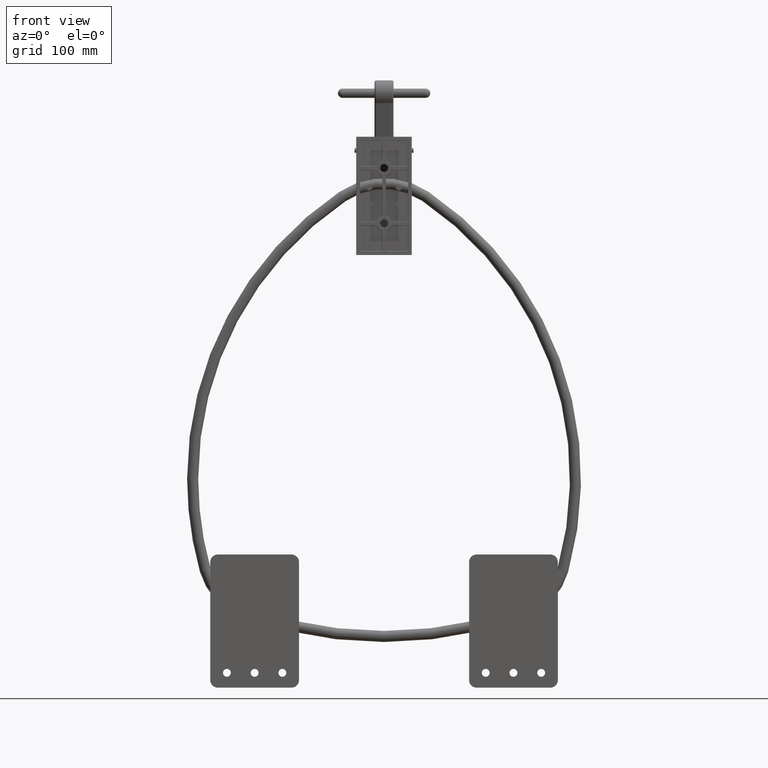
[diagram: clean part render]
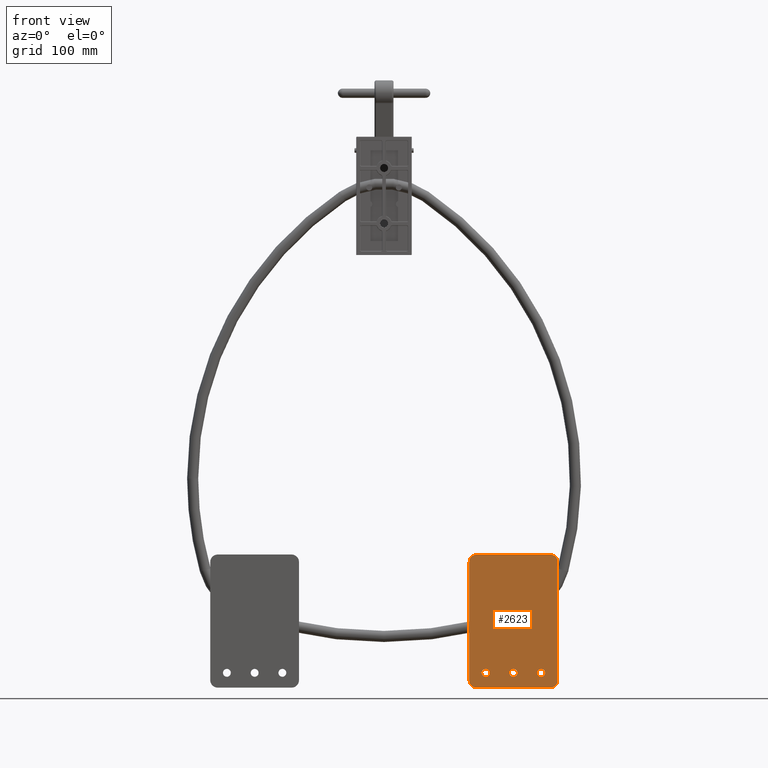
[diagram: same view with one face highlighted and labeled with its STEP entity id]
A machine part, front view. The second image highlights one B-rep face of the part: STEP entity #2623.
In plain terms, the highlighted planar face has unit normal (-0, 1, 0).
Its self-contained STEP definition (entity closure, byte-faithful):
#1125 = CARTESIAN_POINT ( 'NONE',  ( 0.5889936941865174800, 4.541996558212013600, 0.9375000000000000000 ) ) ;
#1143 = DIRECTION ( 'NONE',  ( 1.000000000000000000, -0.0000000000000000000, -0.0000000000000000000 ) ) ;
#1144 = DIRECTION ( 'NONE',  ( 0.0000000000000000000, 0.0000000000000000000, -1.000000000000000000 ) ) ;
#2623 = ADVANCED_FACE ( 'NONE', ( #5855, #5861, #5863, #5865 ), #19444, .F. ) ;
#4727 = EDGE_CURVE ( 'NONE', #23000, #31976, #31738, .T. ) ;
#4738 = EDGE_CURVE ( 'NONE', #22943, #23028, #31756, .T. ) ;
#4740 = EDGE_CURVE ( 'NONE', #23028, #31951, #31755, .T. ) ;
#4743 = EDGE_CURVE ( 'NONE', #31951, #23000, #21830, .T. ) ;
#4752 = EDGE_CURVE ( 'NONE', #31976, #23184, #21861, .T. ) ;
#4755 = EDGE_CURVE ( 'NONE', #23184, #31922, #21859, .T. ) ;
#4758 = EDGE_CURVE ( 'NONE', #31922, #32014, #21884, .T. ) ;
#4761 = EDGE_CURVE ( 'NONE', #32014, #22943, #21889, .T. ) ;
#4763 = EDGE_CURVE ( 'NONE', #32032, #31919, #21903, .T. ) ;
#4764 = EDGE_CURVE ( 'NONE', #22957, #31955, #21906, .T. ) ;
#4765 = EDGE_CURVE ( 'NONE', #22932, #22929, #21910, .T. ) ;
#5115 = AXIS2_PLACEMENT_3D ( 'NONE', #19441, #19435, #19436 ) ;
#5261 = AXIS2_PLACEMENT_3D ( 'NONE', #26227, #20976, #20977 ) ;
#5263 = AXIS2_PLACEMENT_3D ( 'NONE', #20986, #20988, #20989 ) ;
#5266 = AXIS2_PLACEMENT_3D ( 'NONE', #21008, #21009, #21010 ) ;
#5267 = AXIS2_PLACEMENT_3D ( 'NONE', #21022, #21024, #21025 ) ;
#5268 = AXIS2_PLACEMENT_3D ( 'NONE', #21023, #21036, #21037 ) ;
#5270 = AXIS2_PLACEMENT_3D ( 'NONE', #21038, #21039, #21040 ) ;
#5272 = AXIS2_PLACEMENT_3D ( 'NONE', #21041, #21042, #21043 ) ;
#5855 = FACE_BOUND ( 'NONE', #18309, .T. ) ;
#5861 = FACE_BOUND ( 'NONE', #18326, .T. ) ;
#5863 = FACE_BOUND ( 'NONE', #18327, .T. ) ;
#5865 = FACE_OUTER_BOUND ( 'NONE', #18328, .T. ) ;
#6345 = ORIENTED_EDGE ( 'NONE', *, *, #4764, .T. ) ;
#6346 = ORIENTED_EDGE ( 'NONE', *, *, #9719, .T. ) ;
#6347 = ORIENTED_EDGE ( 'NONE', *, *, #4765, .T. ) ;
#6348 = ORIENTED_EDGE ( 'NONE', *, *, #9632, .T. ) ;
#9631 = EDGE_CURVE ( 'NONE', #31919, #32032, #29374, .T. ) ;
#9632 = EDGE_CURVE ( 'NONE', #22929, #22932, #29376, .T. ) ;
#9719 = EDGE_CURVE ( 'NONE', #31955, #22957, #29500, .T. ) ;
#15620 = CARTESIAN_POINT ( 'NONE',  ( 0.5889936941865174800, 4.541996558212013600, -0.8045000000000001000 ) ) ;
#15623 = CARTESIAN_POINT ( 'NONE',  ( 0.5889936941865192600, 4.791996558212013600, 1.500000000000000400 ) ) ;
#15650 = CARTESIAN_POINT ( 'NONE',  ( 0.5889936941865177000, 0.7919965582120138700, -1.499999999999999800 ) ) ;
#15654 = CARTESIAN_POINT ( 'NONE',  ( 0.5889936941865174800, 4.541996558212013600, 1.070500000000000000 ) ) ;
#16759 = CARTESIAN_POINT ( 'NONE',  ( 0.5889936941865175900, 0.5419965582120140900, 1.250000000000000900 ) ) ;
#16797 = CARTESIAN_POINT ( 'NONE',  ( 0.5889936941865193700, 5.041996558212013600, 1.250000000000000000 ) ) ;
#16815 = CARTESIAN_POINT ( 'NONE',  ( 0.5889936941865174800, 4.541996558212013600, -1.070500000000000000 ) ) ;
#18309 = EDGE_LOOP ( 'NONE', ( #6345, #6346 ) ) ;
#18326 = EDGE_LOOP ( 'NONE', ( #6347, #6348 ) ) ;
#18327 = EDGE_LOOP ( 'NONE', ( #32165, #32167 ) ) ;
#18328 = EDGE_LOOP ( 'NONE', ( #32169, #32171, #32173, #32175, #32177, #32179, #32181, #32183 ) ) ;
#19435 = DIRECTION ( 'NONE',  ( 1.000000000000000000, -3.642463991552351500E-016, -0.0000000000000000000 ) ) ;
#19436 = DIRECTION ( 'NONE',  ( 3.642463991552351500E-016, 1.000000000000000000, 0.0000000000000000000 ) ) ;
#19441 = CARTESIAN_POINT ( 'NONE',  ( 0.5889936941865192600, 4.791996558212013600, -1.250000000000000000 ) ) ;
#19444 = PLANE ( 'NONE',  #5115 ) ;
#20906 = CARTESIAN_POINT ( 'NONE',  ( 0.5889936941865174800, 4.541996558212013600, 0.1329999999999999200 ) ) ;
#20909 = CARTESIAN_POINT ( 'NONE',  ( 0.5889936941865174800, 4.541996558212013600, -0.1329999999999999200 ) ) ;
#20920 = CARTESIAN_POINT ( 'NONE',  ( 0.5889936941865192600, 5.041996558212013600, -1.250000000000000000 ) ) ;
#20934 = CARTESIAN_POINT ( 'NONE',  ( 0.5889936941865174800, 4.541996558212013600, 0.8045000000000001000 ) ) ;
#20976 = DIRECTION ( 'NONE',  ( -1.000000000000000000, 3.642463991552351900E-016, 0.0000000000000000000 ) ) ;
#20977 = DIRECTION ( 'NONE',  ( 2.731847993664259800E-016, 1.000000000000000000, 0.0000000000000000000 ) ) ;
#20986 = CARTESIAN_POINT ( 'NONE',  ( 0.5889936941865177000, 0.7919965582120138700, -1.250000000000000200 ) ) ;
#20988 = DIRECTION ( 'NONE',  ( -1.000000000000000000, 3.642463991552351900E-016, 0.0000000000000000000 ) ) ;
#20989 = DIRECTION ( 'NONE',  ( 2.731847993664266700E-016, 1.000000000000000000, 0.0000000000000000000 ) ) ;
#21005 = CARTESIAN_POINT ( 'NONE',  ( 0.5889936941865192600, 4.791996558212013600, 1.500000000000000400 ) ) ;
#21008 = CARTESIAN_POINT ( 'NONE',  ( 0.5889936941865177000, 0.7919965582120138700, 1.250000000000000900 ) ) ;
#21009 = DIRECTION ( 'NONE',  ( -1.000000000000000000, 3.642463991552351900E-016, 0.0000000000000000000 ) ) ;
#21010 = DIRECTION ( 'NONE',  ( 2.731847993664265200E-016, 1.000000000000000000, 0.0000000000000000000 ) ) ;
#21016 = DIRECTION ( 'NONE',  ( 3.756290991288361200E-016, 1.000000000000000000, -6.829619984160658000E-017 ) ) ;
#21022 = CARTESIAN_POINT ( 'NONE',  ( 0.5889936941865192600, 4.791996558212013600, 1.250000000000000000 ) ) ;
#21023 = CARTESIAN_POINT ( 'NONE',  ( 0.5889936941865174800, 4.541996558212013600, -0.9375000000000000000 ) ) ;
#21024 = DIRECTION ( 'NONE',  ( -1.000000000000000000, 3.642463991552351900E-016, 0.0000000000000000000 ) ) ;
#21025 = DIRECTION ( 'NONE',  ( 2.731847993664259800E-016, 1.000000000000000000, 0.0000000000000000000 ) ) ;
#21030 = CARTESIAN_POINT ( 'NONE',  ( 0.5889936941865192600, 5.041996558212013600, -1.250000000000000000 ) ) ;
#21031 = DIRECTION ( 'NONE',  ( -0.0000000000000000000, -0.0000000000000000000, -1.000000000000000000 ) ) ;
#21036 = DIRECTION ( 'NONE',  ( 1.000000000000000000, -0.0000000000000000000, -0.0000000000000000000 ) ) ;
#21037 = DIRECTION ( 'NONE',  ( 0.0000000000000000000, 0.0000000000000000000, -1.000000000000000000 ) ) ;
#21038 = CARTESIAN_POINT ( 'NONE',  ( 0.5889936941865174800, 4.541996558212013600, 0.9375000000000000000 ) ) ;
#21039 = DIRECTION ( 'NONE',  ( 1.000000000000000000, -0.0000000000000000000, -0.0000000000000000000 ) ) ;
#21040 = DIRECTION ( 'NONE',  ( 0.0000000000000000000, 0.0000000000000000000, -1.000000000000000000 ) ) ;
#21041 = CARTESIAN_POINT ( 'NONE',  ( 0.5889936941865174800, 4.541996558212013600, 0.0000000000000000000 ) ) ;
#21042 = DIRECTION ( 'NONE',  ( 1.000000000000000000, -0.0000000000000000000, -0.0000000000000000000 ) ) ;
#21043 = DIRECTION ( 'NONE',  ( 0.0000000000000000000, 0.0000000000000000000, -1.000000000000000000 ) ) ;
#21830 = CIRCLE ( 'NONE', #5263, 0.2499999999999996700 ) ;
#21859 = LINE ( 'NONE', #21005, #21868 ) ;
#21861 = CIRCLE ( 'NONE', #5266, 0.2499999999999998100 ) ;
#21868 = VECTOR ( 'NONE', #21016, 39.37007874015748100 ) ;
#21884 = CIRCLE ( 'NONE', #5267, 0.2500000000000003300 ) ;
#21889 = LINE ( 'NONE', #21030, #21892 ) ;
#21892 = VECTOR ( 'NONE', #21031, 39.37007874015748100 ) ;
#21903 = CIRCLE ( 'NONE', #5268, 0.1329999999999999200 ) ;
#21906 = CIRCLE ( 'NONE', #5270, 0.1329999999999999200 ) ;
#21910 = CIRCLE ( 'NONE', #5272, 0.1329999999999999200 ) ;
#22929 = VERTEX_POINT ( 'NONE', #20906 ) ;
#22932 = VERTEX_POINT ( 'NONE', #20909 ) ;
#22943 = VERTEX_POINT ( 'NONE', #20920 ) ;
#22957 = VERTEX_POINT ( 'NONE', #20934 ) ;
#23000 = VERTEX_POINT ( 'NONE', #26925 ) ;
#23028 = VERTEX_POINT ( 'NONE', #26953 ) ;
#23184 = VERTEX_POINT ( 'NONE', #27107 ) ;
#26201 = CARTESIAN_POINT ( 'NONE',  ( 0.5889936941865175900, 0.5419965582120142000, -1.250000000000000200 ) ) ;
#26202 = DIRECTION ( 'NONE',  ( 0.0000000000000000000, -2.731847993664262000E-017, 1.000000000000000000 ) ) ;
#26224 = CARTESIAN_POINT ( 'NONE',  ( 0.5889936941865192600, 4.791996558212013600, -1.500000000000000400 ) ) ;
#26227 = CARTESIAN_POINT ( 'NONE',  ( 0.5889936941865192600, 4.791996558212013600, -1.250000000000000000 ) ) ;
#26229 = DIRECTION ( 'NONE',  ( -3.756290991288361200E-016, -1.000000000000000000, 1.365923996832131600E-016 ) ) ;
#26925 = CARTESIAN_POINT ( 'NONE',  ( 0.5889936941865175900, 0.5419965582120142000, -1.250000000000000200 ) ) ;
#26953 = CARTESIAN_POINT ( 'NONE',  ( 0.5889936941865192600, 4.791996558212013600, -1.500000000000000400 ) ) ;
#27107 = CARTESIAN_POINT ( 'NONE',  ( 0.5889936941865177000, 0.7919965582120138700, 1.500000000000000700 ) ) ;
#28764 = AXIS2_PLACEMENT_3D ( 'NONE', #33980, #33987, #33988 ) ;
#28771 = AXIS2_PLACEMENT_3D ( 'NONE', #33983, #33990, #33991 ) ;
#28817 = AXIS2_PLACEMENT_3D ( 'NONE', #1125, #1143, #1144 ) ;
#29374 = CIRCLE ( 'NONE', #28764, 0.1329999999999999200 ) ;
#29376 = CIRCLE ( 'NONE', #28771, 0.1329999999999999200 ) ;
#29500 = CIRCLE ( 'NONE', #28817, 0.1329999999999999200 ) ;
#31724 = VECTOR ( 'NONE', #26202, 39.37007874015748100 ) ;
#31738 = LINE ( 'NONE', #26201, #31724 ) ;
#31755 = LINE ( 'NONE', #26224, #31757 ) ;
#31756 = CIRCLE ( 'NONE', #5261, 0.2500000000000003300 ) ;
#31757 = VECTOR ( 'NONE', #26229, 39.37007874015748100 ) ;
#31919 = VERTEX_POINT ( 'NONE', #15620 ) ;
#31922 = VERTEX_POINT ( 'NONE', #15623 ) ;
#31951 = VERTEX_POINT ( 'NONE', #15650 ) ;
#31955 = VERTEX_POINT ( 'NONE', #15654 ) ;
#31976 = VERTEX_POINT ( 'NONE', #16759 ) ;
#32014 = VERTEX_POINT ( 'NONE', #16797 ) ;
#32032 = VERTEX_POINT ( 'NONE', #16815 ) ;
#32165 = ORIENTED_EDGE ( 'NONE', *, *, #4763, .T. ) ;
#32167 = ORIENTED_EDGE ( 'NONE', *, *, #9631, .T. ) ;
#32169 = ORIENTED_EDGE ( 'NONE', *, *, #4738, .T. ) ;
#32171 = ORIENTED_EDGE ( 'NONE', *, *, #4740, .T. ) ;
#32173 = ORIENTED_EDGE ( 'NONE', *, *, #4743, .T. ) ;
#32175 = ORIENTED_EDGE ( 'NONE', *, *, #4727, .T. ) ;
#32177 = ORIENTED_EDGE ( 'NONE', *, *, #4752, .T. ) ;
#32179 = ORIENTED_EDGE ( 'NONE', *, *, #4755, .T. ) ;
#32181 = ORIENTED_EDGE ( 'NONE', *, *, #4758, .T. ) ;
#32183 = ORIENTED_EDGE ( 'NONE', *, *, #4761, .T. ) ;
#33980 = CARTESIAN_POINT ( 'NONE',  ( 0.5889936941865174800, 4.541996558212013600, -0.9375000000000000000 ) ) ;
#33983 = CARTESIAN_POINT ( 'NONE',  ( 0.5889936941865174800, 4.541996558212013600, 0.0000000000000000000 ) ) ;
#33987 = DIRECTION ( 'NONE',  ( 1.000000000000000000, -0.0000000000000000000, -0.0000000000000000000 ) ) ;
#33988 = DIRECTION ( 'NONE',  ( 0.0000000000000000000, 0.0000000000000000000, -1.000000000000000000 ) ) ;
#33990 = DIRECTION ( 'NONE',  ( 1.000000000000000000, -0.0000000000000000000, -0.0000000000000000000 ) ) ;
#33991 = DIRECTION ( 'NONE',  ( 0.0000000000000000000, 0.0000000000000000000, -1.000000000000000000 ) ) ;